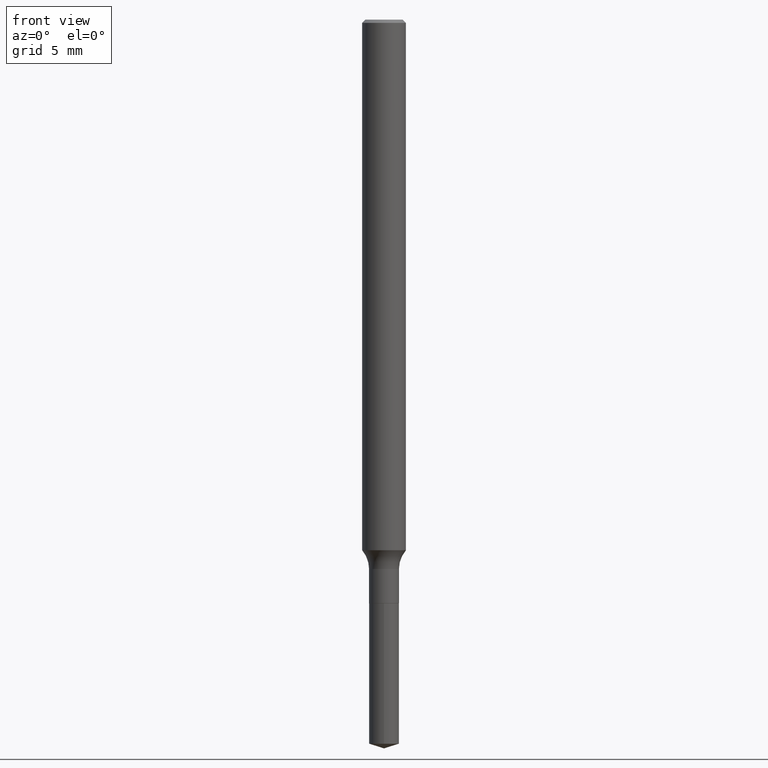
[diagram: clean part render]
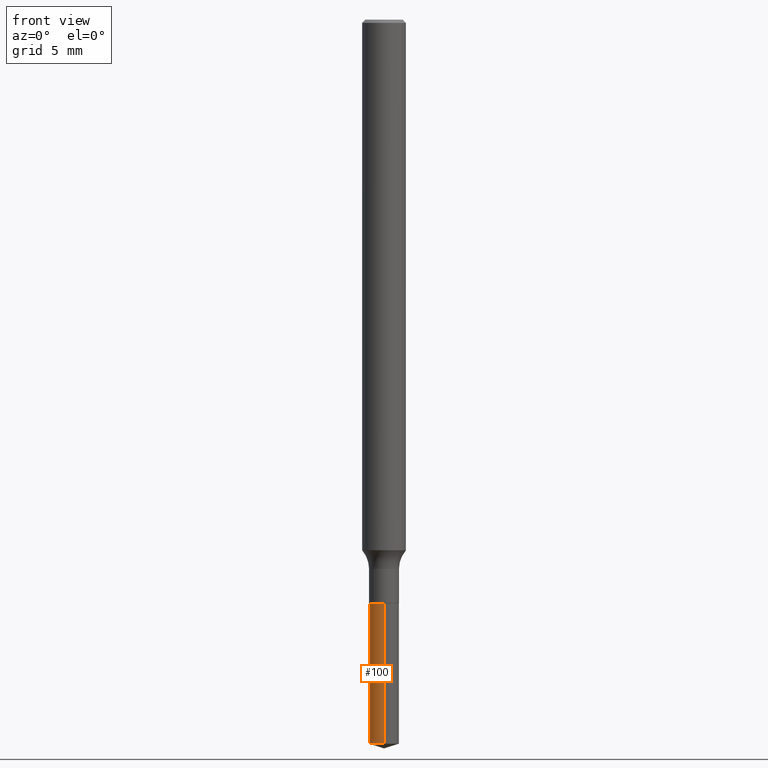
[diagram: same view with one face highlighted and labeled with its STEP entity id]
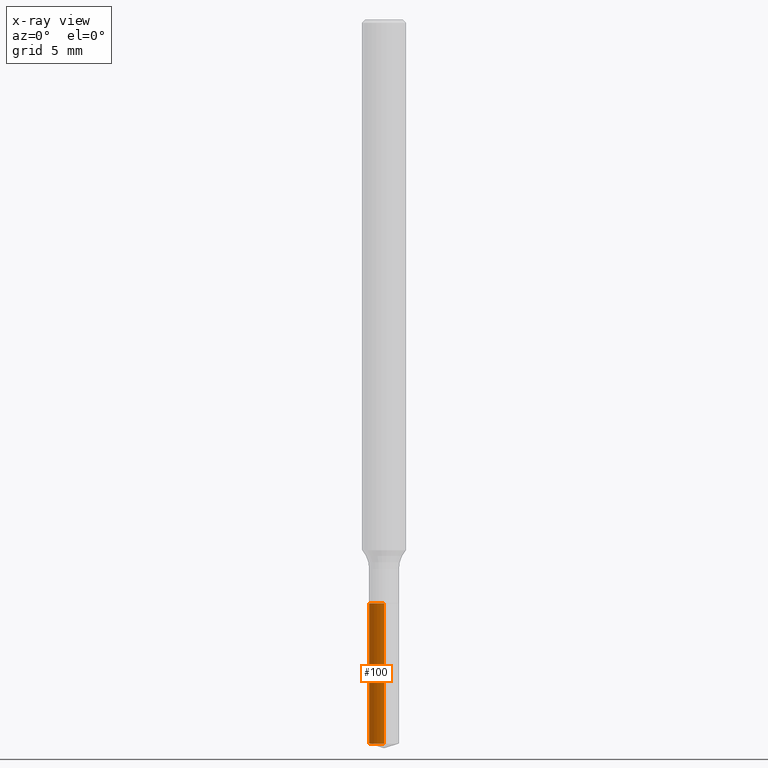
[diagram: x-ray of the same camera — body ghosted, the highlighted face saturated]
A machine part, front view. The second image highlights one B-rep face of the part: STEP entity #100.
The next image is the same camera in x-ray: the body ghosted, the highlighted face saturated — about 0% of this face is hidden behind the body in this view.
In plain terms, the highlighted cylindrical surface (edge-blend (fillet) strip) has radius 1.0249 mm, axis along (-0, 0, 1).
Its self-contained STEP definition (entity closure, byte-faithful):
#30 = EDGE_CURVE ( 'NONE', #403, #307, #119, .T. ) ;
#48 = CARTESIAN_POINT ( 'NONE',  ( 2.867039938792482775E-16, 0.04034999999999448750, -1.576800000000000201 ) ) ;
#67 = FACE_OUTER_BOUND ( 'NONE', #462, .T. ) ;
#100 = ADVANCED_FACE ( 'NONE', ( #67 ), #219, .T. ) ;
#106 = DIRECTION ( 'NONE',  ( -6.982962677686266711E-15, -1.000000000000000000, 6.770379166454184154E-15 ) ) ;
#110 = DIRECTION ( 'NONE',  ( -6.982962677686266711E-15, -1.000000000000000000, 6.770379166454184154E-15 ) ) ;
#117 = DIRECTION ( 'NONE',  ( -2.445541806582640736E-29, 3.491376798118994432E-15, 1.000000000000000000 ) ) ;
#119 = CIRCLE ( 'NONE', #177, 0.04034999999999999698 ) ;
#122 = CARTESIAN_POINT ( 'NONE',  ( -2.817625440445929586E-16, -0.04035000000000681791, -1.955777693868732792 ) ) ;
#150 = VECTOR ( 'NONE', #117, 39.37007874015748143 ) ;
#158 = AXIS2_PLACEMENT_3D ( 'NONE', #174, #341, #110 ) ;
#165 = ORIENTED_EDGE ( 'NONE', *, *, #256, .T. ) ;
#168 = DIRECTION ( 'NONE',  ( -2.445541806582640736E-29, 3.491376798118994432E-15, 1.000000000000000000 ) ) ;
#172 = CARTESIAN_POINT ( 'NONE',  ( -2.817625440446022277E-16, -0.04035000000000549952, -1.576799999999999757 ) ) ;
#174 = CARTESIAN_POINT ( 'NONE',  ( 3.856015213592723441E-29, -5.505367775087871380E-15, -1.576799999999999979 ) ) ;
#177 = AXIS2_PLACEMENT_3D ( 'NONE', #480, #378, #106 ) ;
#186 = CIRCLE ( 'NONE', #424, 0.04034999999999999698 ) ;
#219 = CYLINDRICAL_SURFACE ( 'NONE', #158, 0.04034999999999999698 ) ;
#220 = LINE ( 'NONE', #172, #258 ) ;
#230 = EDGE_CURVE ( 'NONE', #429, #403, #350, .T. ) ;
#232 = DIRECTION ( 'NONE',  ( -2.445541806582640736E-29, 3.491376798118994826E-15, 1.000000000000000000 ) ) ;
#256 = EDGE_CURVE ( 'NONE', #429, #415, #186, .T. ) ;
#258 = VECTOR ( 'NONE', #168, 39.37007874015748143 ) ;
#275 = ORIENTED_EDGE ( 'NONE', *, *, #230, .F. ) ;
#306 = DIRECTION ( 'NONE',  ( -6.982962677686266711E-15, -1.000000000000000000, 6.770379166454184154E-15 ) ) ;
#307 = VERTEX_POINT ( 'NONE', #457 ) ;
#322 = ORIENTED_EDGE ( 'NONE', *, *, #30, .F. ) ;
#341 = DIRECTION ( 'NONE',  ( -2.445541806582640736E-29, 3.491376798118994826E-15, 1.000000000000000000 ) ) ;
#346 = CARTESIAN_POINT ( 'NONE',  ( 2.867039938792389098E-16, 0.04034999999999448750, -1.576800000000000201 ) ) ;
#347 = CARTESIAN_POINT ( 'NONE',  ( 4.782821007710988017E-29, -6.828521702465810042E-15, -1.955777693868733236 ) ) ;
#350 = LINE ( 'NONE', #346, #150 ) ;
#378 = DIRECTION ( 'NONE',  ( -2.445541806582640736E-29, 3.491376798118994826E-15, 1.000000000000000000 ) ) ;
#403 = VERTEX_POINT ( 'NONE', #48 ) ;
#415 = VERTEX_POINT ( 'NONE', #122 ) ;
#424 = AXIS2_PLACEMENT_3D ( 'NONE', #347, #232, #306 ) ;
#427 = CARTESIAN_POINT ( 'NONE',  ( 2.867039938792481296E-16, 0.04034999999999315523, -1.955777693868733458 ) ) ;
#429 = VERTEX_POINT ( 'NONE', #427 ) ;
#457 = CARTESIAN_POINT ( 'NONE',  ( -2.817625440446022277E-16, -0.04035000000000549952, -1.576799999999999757 ) ) ;
#458 = ORIENTED_EDGE ( 'NONE', *, *, #486, .T. ) ;
#462 = EDGE_LOOP ( 'NONE', ( #275, #165, #458, #322 ) ) ;
#480 = CARTESIAN_POINT ( 'NONE',  ( 3.856015213592723441E-29, -5.505367775087871380E-15, -1.576799999999999979 ) ) ;
#486 = EDGE_CURVE ( 'NONE', #415, #307, #220, .T. ) ;